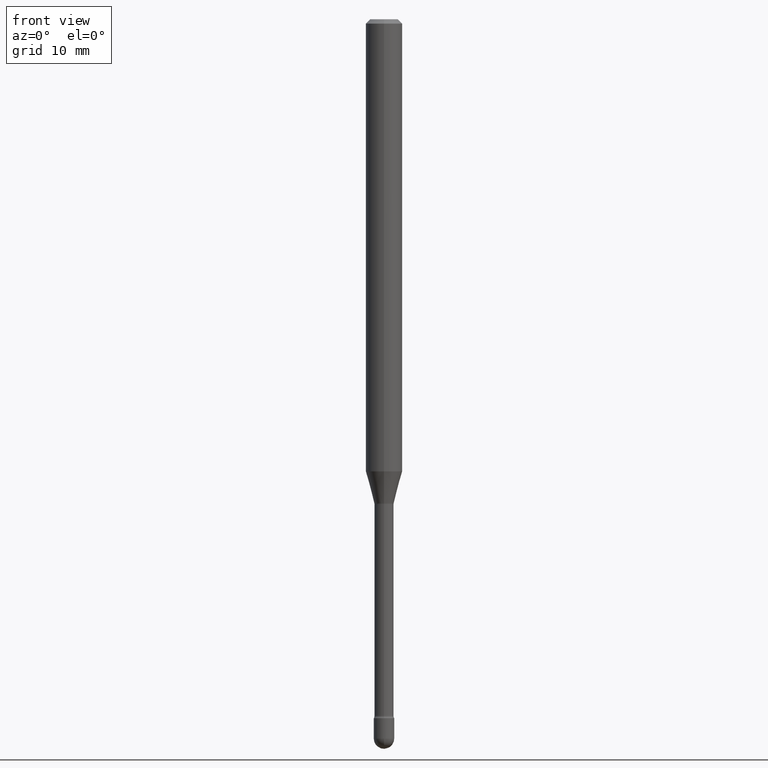
[diagram: clean part render]
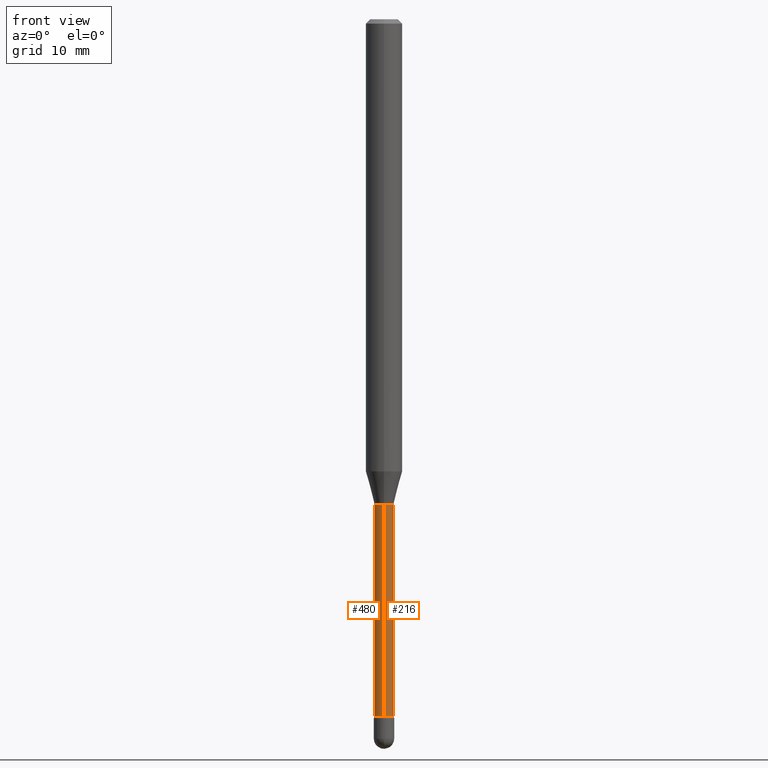
[diagram: same view with one multi-face feature highlighted, each face labeled with its STEP entity id]
A machine part, front view. The highlighted faces form ONE feature: a constant-radius fillet chain: 2 tangent blend faces with common blend radius 0.8357 mm. The faces share edges in the B-rep.
Their STEP definitions:
[1] entity #480 (Cylinder):
#20 = CIRCLE ( 'NONE', #220, 0.03290000000000006114 ) ;
#37 = CARTESIAN_POINT ( 'NONE',  ( 2.337685600651315741E-16, 0.03289999999999419777, -1.661974787463811332 ) ) ;
#53 = ORIENTED_EDGE ( 'NONE', *, *, #476, .F. ) ;
#68 = CARTESIAN_POINT ( 'NONE',  ( 5.838294968381408865E-29, -8.335206743429354077E-15, -2.387345589506696175 ) ) ;
#84 = VECTOR ( 'NONE', #349, 39.37007874015748143 ) ;
#115 = CIRCLE ( 'NONE', #155, 0.03289999999999999869 ) ;
#155 = AXIS2_PLACEMENT_3D ( 'NONE', #428, #176, #222 ) ;
#173 = AXIS2_PLACEMENT_3D ( 'NONE', #347, #308, #312 ) ;
#174 = LINE ( 'NONE', #346, #84 ) ;
#176 = DIRECTION ( 'NONE',  ( -2.445517311797238408E-29, 3.491411876045847852E-15, 1.000000000000000000 ) ) ;
#184 = CARTESIAN_POINT ( 'NONE',  ( -2.297394720958374770E-16, -0.03290000000000579961, -1.661974787463811332 ) ) ;
#220 = AXIS2_PLACEMENT_3D ( 'NONE', #68, #250, #419 ) ;
#222 = DIRECTION ( 'NONE',  ( -6.982962677686265133E-15, -1.000000000000000000, 0.000000000000000000 ) ) ;
#225 = CARTESIAN_POINT ( 'NONE',  ( -2.297394720958201714E-16, -0.03290000000000839475, -2.387345589506696175 ) ) ;
#232 = VECTOR ( 'NONE', #396, 39.37007874015748143 ) ;
#250 = DIRECTION ( 'NONE',  ( -2.445517311797238408E-29, 3.491411876045847852E-15, 1.000000000000000000 ) ) ;
#271 = EDGE_LOOP ( 'NONE', ( #53, #399, #441, #432 ) ) ;
#280 = LINE ( 'NONE', #369, #232 ) ;
#300 = EDGE_CURVE ( 'NONE', #348, #490, #20, .T. ) ;
#308 = DIRECTION ( 'NONE',  ( -2.445517311797238408E-29, 3.491411876045847852E-15, 1.000000000000000000 ) ) ;
#312 = DIRECTION ( 'NONE',  ( -6.982962677686266711E-15, -1.000000000000000000, 3.491411876045845880E-15 ) ) ;
#341 = CARTESIAN_POINT ( 'NONE',  ( 2.412292587906127904E-16, 0.03289999999999172753, -2.387345589506696175 ) ) ;
#346 = CARTESIAN_POINT ( 'NONE',  ( 2.337685600650730998E-16, 0.03290000000000002645, 3.632059481693375614E-16 ) ) ;
#347 = CARTESIAN_POINT ( 'NONE',  ( -1.169113584055446105E-44, 1.669184350826100908E-30, 4.780733988912460139E-16 ) ) ;
#348 = VERTEX_POINT ( 'NONE', #341 ) ;
#349 = DIRECTION ( 'NONE',  ( -2.445517311797238688E-29, 3.491411876045848246E-15, 1.000000000000000000 ) ) ;
#369 = CARTESIAN_POINT ( 'NONE',  ( -2.297394720958783499E-16, -0.03290000000000002645, 5.929408496131545157E-16 ) ) ;
#396 = DIRECTION ( 'NONE',  ( -2.445517311797238688E-29, 3.491411876045848246E-15, 1.000000000000000000 ) ) ;
#399 = ORIENTED_EDGE ( 'NONE', *, *, #300, .T. ) ;
#406 = VERTEX_POINT ( 'NONE', #37 ) ;
#419 = DIRECTION ( 'NONE',  ( -6.982962677686266711E-15, -1.000000000000000000, 0.000000000000000000 ) ) ;
#428 = CARTESIAN_POINT ( 'NONE',  ( 4.064388114513286773E-29, -5.802638510639924192E-15, -1.661974787463811332 ) ) ;
#432 = ORIENTED_EDGE ( 'NONE', *, *, #455, .F. ) ;
#441 = ORIENTED_EDGE ( 'NONE', *, *, #500, .T. ) ;
#455 = EDGE_CURVE ( 'NONE', #406, #520, #115, .T. ) ;
#476 = EDGE_CURVE ( 'NONE', #348, #406, #174, .T. ) ;
#480 = ADVANCED_FACE ( 'NONE', ( #512 ), #564, .T. ) ;
#490 = VERTEX_POINT ( 'NONE', #225 ) ;
#500 = EDGE_CURVE ( 'NONE', #490, #520, #280, .T. ) ;
#512 = FACE_OUTER_BOUND ( 'NONE', #271, .T. ) ;
#520 = VERTEX_POINT ( 'NONE', #184 ) ;
#564 = CYLINDRICAL_SURFACE ( 'NONE', #173, 0.03290000000000002645 ) ;
[2] entity #216 (Cylinder):
#3 = EDGE_LOOP ( 'NONE', ( #102, #241, #486, #42 ) ) ;
#11 = DIRECTION ( 'NONE',  ( -6.982962677686265133E-15, -1.000000000000000000, 0.000000000000000000 ) ) ;
#37 = CARTESIAN_POINT ( 'NONE',  ( 2.337685600651315741E-16, 0.03289999999999419777, -1.661974787463811332 ) ) ;
#42 = ORIENTED_EDGE ( 'NONE', *, *, #500, .F. ) ;
#44 = AXIS2_PLACEMENT_3D ( 'NONE', #257, #421, #371 ) ;
#84 = VECTOR ( 'NONE', #349, 39.37007874015748143 ) ;
#88 = EDGE_CURVE ( 'NONE', #520, #406, #364, .T. ) ;
#102 = ORIENTED_EDGE ( 'NONE', *, *, #404, .T. ) ;
#129 = CARTESIAN_POINT ( 'NONE',  ( 5.838294968381408865E-29, -8.335206743429354077E-15, -2.387345589506696175 ) ) ;
#174 = LINE ( 'NONE', #346, #84 ) ;
#184 = CARTESIAN_POINT ( 'NONE',  ( -2.297394720958374770E-16, -0.03290000000000579961, -1.661974787463811332 ) ) ;
#216 = ADVANCED_FACE ( 'NONE', ( #295 ), #384, .T. ) ;
#221 = CIRCLE ( 'NONE', #398, 0.03290000000000006114 ) ;
#225 = CARTESIAN_POINT ( 'NONE',  ( -2.297394720958201714E-16, -0.03290000000000839475, -2.387345589506696175 ) ) ;
#232 = VECTOR ( 'NONE', #396, 39.37007874015748143 ) ;
#238 = CARTESIAN_POINT ( 'NONE',  ( 4.064388114513286773E-29, -5.802638510639924192E-15, -1.661974787463811332 ) ) ;
#241 = ORIENTED_EDGE ( 'NONE', *, *, #476, .T. ) ;
#257 = CARTESIAN_POINT ( 'NONE',  ( -1.169113584055446105E-44, 1.669184350826100908E-30, 4.780733988912460139E-16 ) ) ;
#258 = AXIS2_PLACEMENT_3D ( 'NONE', #238, #526, #11 ) ;
#280 = LINE ( 'NONE', #369, #232 ) ;
#295 = FACE_OUTER_BOUND ( 'NONE', #3, .T. ) ;
#341 = CARTESIAN_POINT ( 'NONE',  ( 2.412292587906127904E-16, 0.03289999999999172753, -2.387345589506696175 ) ) ;
#346 = CARTESIAN_POINT ( 'NONE',  ( 2.337685600650730998E-16, 0.03290000000000002645, 3.632059481693375614E-16 ) ) ;
#348 = VERTEX_POINT ( 'NONE', #341 ) ;
#349 = DIRECTION ( 'NONE',  ( -2.445517311797238688E-29, 3.491411876045848246E-15, 1.000000000000000000 ) ) ;
#364 = CIRCLE ( 'NONE', #258, 0.03289999999999999869 ) ;
#369 = CARTESIAN_POINT ( 'NONE',  ( -2.297394720958783499E-16, -0.03290000000000002645, 5.929408496131545157E-16 ) ) ;
#371 = DIRECTION ( 'NONE',  ( -6.982962677686266711E-15, -1.000000000000000000, 3.491411876045845880E-15 ) ) ;
#384 = CYLINDRICAL_SURFACE ( 'NONE', #44, 0.03290000000000002645 ) ;
#396 = DIRECTION ( 'NONE',  ( -2.445517311797238688E-29, 3.491411876045848246E-15, 1.000000000000000000 ) ) ;
#398 = AXIS2_PLACEMENT_3D ( 'NONE', #129, #471, #559 ) ;
#404 = EDGE_CURVE ( 'NONE', #490, #348, #221, .T. ) ;
#406 = VERTEX_POINT ( 'NONE', #37 ) ;
#421 = DIRECTION ( 'NONE',  ( -2.445517311797238408E-29, 3.491411876045847852E-15, 1.000000000000000000 ) ) ;
#471 = DIRECTION ( 'NONE',  ( -2.445517311797238408E-29, 3.491411876045847852E-15, 1.000000000000000000 ) ) ;
#476 = EDGE_CURVE ( 'NONE', #348, #406, #174, .T. ) ;
#486 = ORIENTED_EDGE ( 'NONE', *, *, #88, .F. ) ;
#490 = VERTEX_POINT ( 'NONE', #225 ) ;
#500 = EDGE_CURVE ( 'NONE', #490, #520, #280, .T. ) ;
#520 = VERTEX_POINT ( 'NONE', #184 ) ;
#526 = DIRECTION ( 'NONE',  ( -2.445517311797238408E-29, 3.491411876045847852E-15, 1.000000000000000000 ) ) ;
#559 = DIRECTION ( 'NONE',  ( -6.982962677686266711E-15, -1.000000000000000000, 0.000000000000000000 ) ) ;